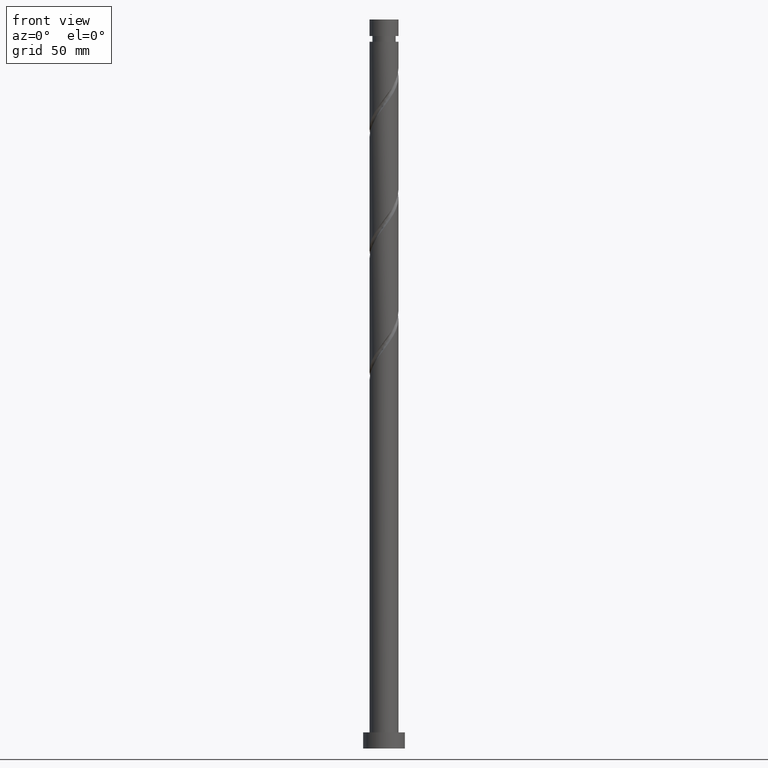
[diagram: clean part render]
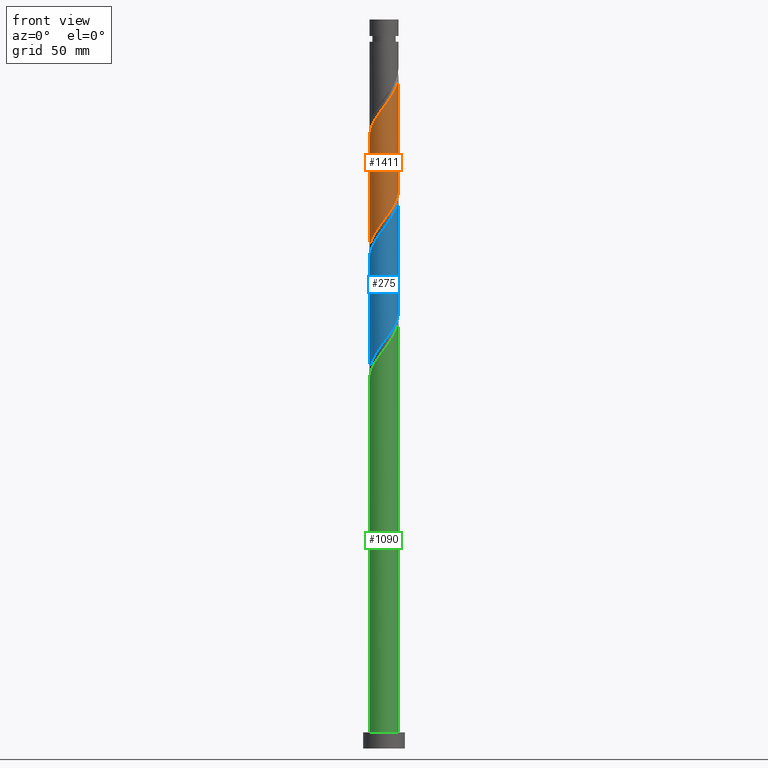
[diagram: same view with three faces highlighted in distinct colors, each labeled with its STEP entity id]
A machine part, front view with three faces highlighted in distinct colors.
Their STEP definitions:

[orange] entity #1411 — the highlighted cylindrical surface (edge-blend (fillet) strip) has radius 6.25 mm, axis along (-0, -0, -1).
#3 = LINE ( 'NONE', #122, #411 ) ;
#12 = CARTESIAN_POINT ( 'NONE',  ( 2.575492001364306116, -5.694676544888975123, 281.0050190924108620 ) ) ;
#23 = CARTESIAN_POINT ( 'NONE',  ( 5.564173480133612237, -2.846484407647080328, 286.6300190924108051 ) ) ;
#31 = CARTESIAN_POINT ( 'NONE',  ( -0.8543914186961960588, -6.231245559048660176, 276.3175190924106914 ) ) ;
#41 = CARTESIAN_POINT ( 'NONE',  ( 3.217127949457152969, -5.404488289406035761, 281.9425190924107483 ) ) ;
#58 = CARTESIAN_POINT ( 'NONE',  ( -6.250000000000001776, 1.634372200607126846E-15, 215.1795361703167657 ) ) ;
#91 = CARTESIAN_POINT ( 'NONE',  ( -6.250000000000001776, 1.634372200607126649E-15, 215.1795361703167657 ) ) ;
#122 = CARTESIAN_POINT ( 'NONE',  ( -6.250000000000000000, 0.000000000000000000, 315.0000000000000000 ) ) ;
#171 = AXIS2_PLACEMENT_3D ( 'NONE', #869, #1342, #1463 ) ;
#185 = CARTESIAN_POINT ( 'NONE',  ( -5.404488289406035761, -3.217127949457152969, 268.8175190924106914 ) ) ;
#219 = CARTESIAN_POINT ( 'NONE',  ( -4.791265665122413253, -4.013262180099761878, 221.0050190924107483 ) ) ;
#228 = CARTESIAN_POINT ( 'NONE',  ( -6.250000000000001776, -0.07520560728993004596, 215.2798988585418840 ) ) ;
#235 = CARTESIAN_POINT ( 'NONE',  ( -4.339079616700646014, -4.553108168431563740, 221.9425190924107767 ) ) ;
#257 = CYLINDRICAL_SURFACE ( 'NONE', #171, 6.250000000000000000 ) ;
#288 = VERTEX_POINT ( 'NONE', #1009 ) ;
#311 = EDGE_CURVE ( 'NONE', #288, #1888, #3, .T. ) ;
#317 = CARTESIAN_POINT ( 'NONE',  ( -6.250000000000011546, -0.6281486345369915458, 265.1687730934682463 ) ) ;
#336 = CARTESIAN_POINT ( 'NONE',  ( 6.250000000000001776, -2.291106235554282619E-15, 241.4295361703167657 ) ) ;
#357 = CARTESIAN_POINT ( 'NONE',  ( 2.846484407647072334, -5.564173480133604244, 232.2550190924107483 ) ) ;
#373 = CARTESIAN_POINT ( 'NONE',  ( 5.984864800371902049, -1.933856053271458597, 238.8175190924107198 ) ) ;
#411 = VECTOR ( 'NONE', #739, 1000.000000000000000 ) ;
#455 = CARTESIAN_POINT ( 'NONE',  ( -2.219552623526193091, -5.884895246723031548, 274.4425190924107483 ) ) ;
#466 = CARTESIAN_POINT ( 'NONE',  ( 6.250000000000012434, -0.07520560728996757149, 290.4801393262795273 ) ) ;
#477 = VERTEX_POINT ( 'NONE', #336 ) ;
#486 = EDGE_CURVE ( 'NONE', #288, #1802, #1617, .T. ) ;
#514 = CARTESIAN_POINT ( 'NONE',  ( 1.536972021111190356, -6.058070402885839201, 230.3800190924107767 ) ) ;
#523 = CARTESIAN_POINT ( 'NONE',  ( -6.231245559048653071, -0.8543914186961926172, 216.3175190924107767 ) ) ;
#615 = CARTESIAN_POINT ( 'NONE',  ( 5.884895246723031548, -2.219552623526193091, 287.5675190924107483 ) ) ;
#626 = CARTESIAN_POINT ( 'NONE',  ( -0.1503894396005498180, -6.248190379338388389, 277.2550190924108051 ) ) ;
#636 = CARTESIAN_POINT ( 'NONE',  ( 6.058070402885848971, -1.536972021111195685, 288.5050190924109188 ) ) ;
#644 = CARTESIAN_POINT ( 'NONE',  ( 5.243451713544189374, -3.473416191767966232, 285.6925190924107483 ) ) ;
#662 = CARTESIAN_POINT ( 'NONE',  ( -2.575492001364303896, -5.694676544888963576, 224.7550190924107483 ) ) ;
#669 = CARTESIAN_POINT ( 'NONE',  ( -0.5536125394950975886, -6.265135199628102392, 227.5675190924107198 ) ) ;
#685 = CARTESIAN_POINT ( 'NONE',  ( 3.473416191767959571, -5.243451713544184045, 233.1925190924106914 ) ) ;
#739 = DIRECTION ( 'NONE',  ( -0.000000000000000000, -0.000000000000000000, -1.000000000000000000 ) ) ;
#749 = ORIENTED_EDGE ( 'NONE', *, *, #1718, .F. ) ;
#750 = CARTESIAN_POINT ( 'NONE',  ( -5.694676544888975123, -2.575492001364306116, 267.8800190924108051 ) ) ;
#781 = CARTESIAN_POINT ( 'NONE',  ( -4.553108168431573510, -4.339079616700646902, 270.6925190924106346 ) ) ;
#798 = CARTESIAN_POINT ( 'NONE',  ( 0.1503894396005474032, -6.248190379338377731, 228.5050190924107767 ) ) ;
#807 = CARTESIAN_POINT ( 'NONE',  ( 4.978798228918796198, -3.778103783078897493, 236.0050190924107198 ) ) ;
#815 = CARTESIAN_POINT ( 'NONE',  ( -5.564173480133604244, -2.846484407647073223, 219.1300190924107483 ) ) ;
#816 =( BOUNDED_CURVE ( )  B_SPLINE_CURVE ( 2, ( #1429, #1847, #1100, #373, #1578, #959, #807, #1560, #1568, #685, #357, #1855, #514, #987, #798, #669, #1404, #1729, #662, #1126, #1258, #235, #219, #967, #815, #826, #1413, #523, #1722, #228, #58 ),
 .UNSPECIFIED., .F., .T. ) 
 B_SPLINE_CURVE_WITH_KNOTS ( ( 3, 2, 2, 2, 2, 2, 2, 2, 2, 2, 2, 2, 2, 2, 2, 3 ),
 ( 0.5545303401299221946, 0.5625000000000000000, 0.5714285714285713969, 0.5803571428571429047, 0.5892857142857143016, 0.5982142857142856984, 0.6071428571428570953, 0.6160714285714286031, 0.6250000000000000000, 0.6339285714285713969, 0.6428571428571429047, 0.6517857142857143016, 0.6607142857142856984, 0.6696428571428570953, 0.6785714285714286031, 0.6795303401299221946 ),
 .UNSPECIFIED. ) 
 CURVE ( )  GEOMETRIC_REPRESENTATION_ITEM ( )  RATIONAL_B_SPLINE_CURVE ( ( 0.9079949616361964182, 0.9039886423360596890, 0.9090909090909264911, 0.9033747362666013636, 0.9090909090909264911, 0.9033747362666013636, 0.9090909090909264911, 0.9033747362666013636, 0.9090909090909264911, 0.9033747362666013636, 0.9090909090909264911, 0.9033747362666013636, 0.9090909090909264911, 0.9033747362666013636, 0.9090909090909264911, 0.9033747362666013636, 0.9090909090909264911, 0.9033747362666013636, 0.9090909090909264911, 0.9033747362666013636, 0.9090909090909264911, 0.9033747362666013636, 0.9090909090909264911, 0.9033747362666013636, 0.9090909090909264911, 0.9033747362666013636, 0.9090909090909264911, 0.9033747362666013636, 0.9090909090909264911, 0.9084770030214681658, 0.9079949616361964182 ) ) 
 REPRESENTATION_ITEM ( '' )  );
#826 = CARTESIAN_POINT ( 'NONE',  ( -5.884895246723026219, -2.219552623526188206, 218.1925190924107198 ) ) ;
#869 = CARTESIAN_POINT ( 'NONE',  ( 0.000000000000000000, 0.000000000000000000, 315.0000000000000000 ) ) ;
#906 = CARTESIAN_POINT ( 'NONE',  ( 3.778103783078901490, -4.978798228918804192, 282.8800190924107483 ) ) ;
#926 = CARTESIAN_POINT ( 'NONE',  ( -6.125000000000010658, -1.243734296383277815, 266.0050190924108051 ) ) ;
#934 = CARTESIAN_POINT ( 'NONE',  ( -3.473416191767964900, -5.243451713544189374, 272.5675190924107483 ) ) ;
#959 = CARTESIAN_POINT ( 'NONE',  ( 5.404488289406027768, -3.217127949457150748, 236.9425190924108051 ) ) ;
#967 = CARTESIAN_POINT ( 'NONE',  ( -5.243451713544183157, -3.473416191767959571, 220.0675190924107767 ) ) ;
#987 = CARTESIAN_POINT ( 'NONE',  ( 0.8543914186961921731, -6.231245559048651295, 229.4425190924107483 ) ) ;
#996 = ORIENTED_EDGE ( 'NONE', *, *, #311, .T. ) ;
#1009 = CARTESIAN_POINT ( 'NONE',  ( -6.250000000000010658, 9.851010524207275462E-16, 264.3305020145047024 ) ) ;
#1049 = CARTESIAN_POINT ( 'NONE',  ( 4.339079616700646902, -4.553108168431573510, 283.8175190924105777 ) ) ;
#1050 = EDGE_LOOP ( 'NONE', ( #749, #1196, #996, #1513 ) ) ;
#1100 = CARTESIAN_POINT ( 'NONE',  ( 6.125000000000000888, -1.243734296383278037, 239.7550190924107483 ) ) ;
#1107 = VECTOR ( 'NONE', #1712, 1000.000000000000000 ) ;
#1118 = LINE ( 'NONE', #1135, #1107 ) ;
#1126 = CARTESIAN_POINT ( 'NONE',  ( -3.217127949457150748, -5.404488289406027768, 223.8175190924107483 ) ) ;
#1135 = CARTESIAN_POINT ( 'NONE',  ( 6.250000000000000000, 7.654042494670957606E-16, 315.0000000000000000 ) ) ;
#1196 = ORIENTED_EDGE ( 'NONE', *, *, #486, .F. ) ;
#1258 = CARTESIAN_POINT ( 'NONE',  ( -3.778103783078897049, -4.978798228918796198, 222.8800190924108051 ) ) ;
#1342 = DIRECTION ( 'NONE',  ( -0.000000000000000000, -0.000000000000000000, -1.000000000000000000 ) ) ;
#1348 = CARTESIAN_POINT ( 'NONE',  ( 1.243734296383277371, -6.125000000000010658, 279.1300190924108051 ) ) ;
#1359 = CARTESIAN_POINT ( 'NONE',  ( -5.984864800371907378, -1.933856053271458375, 266.9425190924107483 ) ) ;
#1378 = CARTESIAN_POINT ( 'NONE',  ( -4.013262180099769871, -4.791265665122421247, 271.6300190924108051 ) ) ;
#1387 = CARTESIAN_POINT ( 'NONE',  ( -4.978798228918804192, -3.778103783078902378, 269.7550190924108620 ) ) ;
#1404 = CARTESIAN_POINT ( 'NONE',  ( -1.243734296383278037, -6.125000000000000888, 226.6300190924107767 ) ) ;
#1411 = ADVANCED_FACE ( 'NONE', ( #1473 ), #257, .T. ) ;
#1413 = CARTESIAN_POINT ( 'NONE',  ( -6.058070402885839201, -1.536972021111190578, 217.2550190924107483 ) ) ;
#1429 = CARTESIAN_POINT ( 'NONE',  ( 6.250000000000001776, -2.291106235554282619E-15, 241.4295361703167657 ) ) ;
#1463 = DIRECTION ( 'NONE',  ( -1.000000000000000000, 0.000000000000000000, 0.000000000000000000 ) ) ;
#1473 = FACE_OUTER_BOUND ( 'NONE', #1050, .T. ) ;
#1493 = CARTESIAN_POINT ( 'NONE',  ( 0.5536125394950959233, -6.265135199628107721, 278.1925190924106914 ) ) ;
#1513 = ORIENTED_EDGE ( 'NONE', *, *, #1805, .F. ) ;
#1514 = CARTESIAN_POINT ( 'NONE',  ( -2.846484407647079884, -5.564173480133612237, 273.5050190924108620 ) ) ;
#1533 = CARTESIAN_POINT ( 'NONE',  ( 4.791265665122420359, -4.013262180099769871, 284.7550190924107483 ) ) ;
#1551 = CARTESIAN_POINT ( 'NONE',  ( 6.250000000000010658, -1.813481482865430117E-15, 290.5805020145046456 ) ) ;
#1560 = CARTESIAN_POINT ( 'NONE',  ( 4.553108168431563740, -4.339079616700646014, 235.0675190924107198 ) ) ;
#1568 = CARTESIAN_POINT ( 'NONE',  ( 4.013262180099761878, -4.791265665122413253, 234.1300190924108051 ) ) ;
#1578 = CARTESIAN_POINT ( 'NONE',  ( 5.694676544888963576, -2.575492001364304784, 237.8800190924107767 ) ) ;
#1617 =( BOUNDED_CURVE ( )  B_SPLINE_CURVE ( 2, ( #1670, #317, #926, #1359, #750, #185, #1387, #781, #1378, #934, #1514, #455, #1801, #31, #626, #1493, #1348, #1659, #12, #41, #906, #1049, #1533, #644, #23, #615, #636, #1821, #1647, #466, #1811 ),
 .UNSPECIFIED., .F., .T. ) 
 B_SPLINE_CURVE_WITH_KNOTS ( ( 3, 2, 2, 2, 2, 2, 2, 2, 2, 2, 2, 2, 2, 2, 2, 3 ),
 ( 0.5545303401299218615, 0.5625000000000000000, 0.5714285714285713969, 0.5803571428571427937, 0.5892857142857143016, 0.5982142857142856984, 0.6071428571428572063, 0.6160714285714286031, 0.6250000000000000000, 0.6339285714285713969, 0.6428571428571427937, 0.6517857142857143016, 0.6607142857142856984, 0.6696428571428572063, 0.6785714285714286031, 0.6795303401299217505 ),
 .UNSPECIFIED. ) 
 CURVE ( )  GEOMETRIC_REPRESENTATION_ITEM ( )  RATIONAL_B_SPLINE_CURVE ( ( 0.9079949616362025244, 0.9039886423360654621, 0.9090909090909321533, 0.9033747362666073588, 0.9090909090909321533, 0.9033747362666073588, 0.9090909090909321533, 0.9033747362666073588, 0.9090909090909321533, 0.9033747362666073588, 0.9090909090909321533, 0.9033747362666073588, 0.9090909090909321533, 0.9033747362666073588, 0.9090909090909321533, 0.9033747362666073588, 0.9090909090909321533, 0.9033747362666073588, 0.9090909090909321533, 0.9033747362666073588, 0.9090909090909321533, 0.9033747362666073588, 0.9090909090909321533, 0.9033747362666073588, 0.9090909090909321533, 0.9033747362666073588, 0.9090909090909321533, 0.9033747362666073588, 0.9090909090909321533, 0.9084770030214741610, 0.9079949616362026354 ) ) 
 REPRESENTATION_ITEM ( '' )  );
#1647 = CARTESIAN_POINT ( 'NONE',  ( 6.248190379338388389, -0.1503894396005505119, 290.3800190924107483 ) ) ;
#1659 = CARTESIAN_POINT ( 'NONE',  ( 1.933856053271457931, -5.984864800371907378, 280.0675190924106914 ) ) ;
#1670 = CARTESIAN_POINT ( 'NONE',  ( -6.250000000000009770, 9.851010524207275462E-16, 264.3305020145047024 ) ) ;
#1712 = DIRECTION ( 'NONE',  ( -0.000000000000000000, -0.000000000000000000, -1.000000000000000000 ) ) ;
#1718 = EDGE_CURVE ( 'NONE', #1802, #477, #1118, .T. ) ;
#1722 = CARTESIAN_POINT ( 'NONE',  ( -6.248190379338377731, -0.1503894396005476530, 215.3800190924107198 ) ) ;
#1729 = CARTESIAN_POINT ( 'NONE',  ( -1.933856053271458153, -5.984864800371902049, 225.6925190924107483 ) ) ;
#1801 = CARTESIAN_POINT ( 'NONE',  ( -1.536972021111195241, -6.058070402885848971, 275.3800190924107483 ) ) ;
#1802 = VERTEX_POINT ( 'NONE', #1551 ) ;
#1805 = EDGE_CURVE ( 'NONE', #477, #1888, #816, .T. ) ;
#1811 = CARTESIAN_POINT ( 'NONE',  ( 6.250000000000010658, -1.813481482865430117E-15, 290.5805020145046456 ) ) ;
#1821 = CARTESIAN_POINT ( 'NONE',  ( 6.231245559048660176, -0.8543914186961966140, 289.4425190924106914 ) ) ;
#1847 = CARTESIAN_POINT ( 'NONE',  ( 6.250000000000000000, -0.6281486345370189683, 240.5912650913531650 ) ) ;
#1855 = CARTESIAN_POINT ( 'NONE',  ( 2.219552623526188206, -5.884895246723026219, 231.3175190924108051 ) ) ;
#1888 = VERTEX_POINT ( 'NONE', #91 ) ;

[blue] entity #275 — the highlighted cylindrical surface (edge-blend (fillet) strip) has radius 6.25 mm, axis along (-0, -0, -1).
#1 = CARTESIAN_POINT ( 'NONE',  ( 6.250000000000011546, -0.07520560728991529387, 237.9801393262796694 ) ) ;
#14 = CARTESIAN_POINT ( 'NONE',  ( -6.058070402885839201, -1.536972021111190578, 164.7550190924107198 ) ) ;
#34 = CARTESIAN_POINT ( 'NONE',  ( 1.536972021111190356, -6.058070402885839201, 177.8800190924107767 ) ) ;
#50 = CARTESIAN_POINT ( 'NONE',  ( 4.013262180099761878, -4.791265665122413253, 181.6300190924107483 ) ) ;
#57 = LINE ( 'NONE', #347, #1871 ) ;
#67 = CARTESIAN_POINT ( 'NONE',  ( -6.250000000000001776, 1.634372200607126846E-15, 162.6795361703167941 ) ) ;
#96 = CARTESIAN_POINT ( 'NONE',  ( -6.250000000000010658, 4.477732056457852931E-17, 211.8305020145046740 ) ) ;
#98 = FACE_OUTER_BOUND ( 'NONE', #862, .T. ) ;
#102 =( BOUNDED_CURVE ( )  B_SPLINE_CURVE ( 2, ( #96, #1133, #120, #1727, #985, #713, #875, #1313, #1292, #1142, #994, #1591, #249, #1902, #850, #1446, #1468, #569, #109, #557, #130, #702, #1303, #1165, #724, #1915, #579, #1338, #737, #1, #589 ),
 .UNSPECIFIED., .F., .T. ) 
 B_SPLINE_CURVE_WITH_KNOTS ( ( 3, 2, 2, 2, 2, 2, 2, 2, 2, 2, 2, 2, 2, 2, 2, 3 ),
 ( 0.3045303401299221391, 0.3125000000000000000, 0.3214285714285713969, 0.3303571428571429047, 0.3392857142857143016, 0.3482142857142856984, 0.3571428571428570953, 0.3660714285714286031, 0.3750000000000000000, 0.3839285714285713969, 0.3928571428571429047, 0.4017857142857143016, 0.4107142857142856984, 0.4196428571428570953, 0.4285714285714286031, 0.4295303401299224166 ),
 .UNSPECIFIED. ) 
 CURVE ( )  GEOMETRIC_REPRESENTATION_ITEM ( )  RATIONAL_B_SPLINE_CURVE ( ( 0.9079949616362021914, 0.9039886423360656842, 0.9090909090909321533, 0.9033747362666073588, 0.9090909090909321533, 0.9033747362666073588, 0.9090909090909321533, 0.9033747362666073588, 0.9090909090909321533, 0.9033747362666073588, 0.9090909090909321533, 0.9033747362666073588, 0.9090909090909321533, 0.9033747362666073588, 0.9090909090909321533, 0.9033747362666073588, 0.9090909090909321533, 0.9033747362666073588, 0.9090909090909321533, 0.9033747362666073588, 0.9090909090909321533, 0.9033747362666073588, 0.9090909090909321533, 0.9033747362666073588, 0.9090909090909321533, 0.9033747362666073588, 0.9090909090909321533, 0.9033747362666073588, 0.9090909090909321533, 0.9084770030214737169, 0.9079949616362019693 ) ) 
 REPRESENTATION_ITEM ( '' )  );
#109 = CARTESIAN_POINT ( 'NONE',  ( 2.575492001364306116, -5.694676544888975123, 228.5050190924108335 ) ) ;
#120 = CARTESIAN_POINT ( 'NONE',  ( -6.125000000000010658, -1.243734296383277815, 213.5050190924108335 ) ) ;
#130 = CARTESIAN_POINT ( 'NONE',  ( 3.778103783078901490, -4.978798228918804192, 230.3800190924108335 ) ) ;
#145 = DIRECTION ( 'NONE',  ( -1.000000000000000000, 0.000000000000000000, 0.000000000000000000 ) ) ;
#186 = CARTESIAN_POINT ( 'NONE',  ( 2.846484407647072334, -5.564173480133604244, 179.7550190924107483 ) ) ;
#194 = CARTESIAN_POINT ( 'NONE',  ( -3.217127949457150748, -5.404488289406027768, 171.3175190924107483 ) ) ;
#227 = CARTESIAN_POINT ( 'NONE',  ( 6.250000000000001776, -2.291106235554282619E-15, 188.9295361703167941 ) ) ;
#249 = CARTESIAN_POINT ( 'NONE',  ( -1.536972021111195241, -6.058070402885848971, 222.8800190924108051 ) ) ;
#275 = ADVANCED_FACE ( 'NONE', ( #98 ), #1414, .T. ) ;
#308 = VERTEX_POINT ( 'NONE', #1145 ) ;
#329 = CARTESIAN_POINT ( 'NONE',  ( 6.250000000000001776, -2.291106235554282619E-15, 188.9295361703167941 ) ) ;
#338 = CARTESIAN_POINT ( 'NONE',  ( 4.553108168431563740, -4.339079616700646014, 182.5675190924107483 ) ) ;
#347 = CARTESIAN_POINT ( 'NONE',  ( 6.250000000000000000, 7.654042494670957606E-16, 315.0000000000000000 ) ) ;
#470 = ORIENTED_EDGE ( 'NONE', *, *, #1667, .F. ) ;
#491 = CARTESIAN_POINT ( 'NONE',  ( 5.984864800371902049, -1.933856053271458597, 186.3175190924107767 ) ) ;
#522 = DIRECTION ( 'NONE',  ( -0.000000000000000000, -0.000000000000000000, -1.000000000000000000 ) ) ;
#557 = CARTESIAN_POINT ( 'NONE',  ( 3.217127949457152969, -5.404488289406035761, 229.4425190924106914 ) ) ;
#559 = CARTESIAN_POINT ( 'NONE',  ( 0.000000000000000000, 0.000000000000000000, 315.0000000000000000 ) ) ;
#569 = CARTESIAN_POINT ( 'NONE',  ( 1.933856053271457931, -5.984864800371907378, 227.5675190924107198 ) ) ;
#576 = VERTEX_POINT ( 'NONE', #227 ) ;
#579 = CARTESIAN_POINT ( 'NONE',  ( 6.058070402885848971, -1.536972021111195685, 236.0050190924108051 ) ) ;
#589 = CARTESIAN_POINT ( 'NONE',  ( 6.250000000000011546, -8.955464112915705862E-16, 238.0805020145046740 ) ) ;
#601 = EDGE_CURVE ( 'NONE', #1800, #576, #57, .T. ) ;
#606 = CARTESIAN_POINT ( 'NONE',  ( -6.248190379338377731, -0.1503894396005476530, 162.8800190924107483 ) ) ;
#617 = CARTESIAN_POINT ( 'NONE',  ( -6.231245559048653071, -0.8543914186961926172, 163.8175190924107767 ) ) ;
#645 = CARTESIAN_POINT ( 'NONE',  ( -3.778103783078897049, -4.978798228918796198, 170.3800190924107198 ) ) ;
#702 = CARTESIAN_POINT ( 'NONE',  ( 4.339079616700646902, -4.553108168431573510, 231.3175190924107198 ) ) ;
#713 = CARTESIAN_POINT ( 'NONE',  ( -5.404488289406035761, -3.217127949457152969, 216.3175190924107767 ) ) ;
#724 = CARTESIAN_POINT ( 'NONE',  ( 5.564173480133612237, -2.846484407647080328, 234.1300190924108051 ) ) ;
#737 = CARTESIAN_POINT ( 'NONE',  ( 6.248190379338388389, -0.1503894396005505119, 237.8800190924107483 ) ) ;
#763 = CARTESIAN_POINT ( 'NONE',  ( -1.243734296383278037, -6.125000000000000888, 174.1300190924108051 ) ) ;
#782 = CARTESIAN_POINT ( 'NONE',  ( -0.5536125394950975886, -6.265135199628102392, 175.0675190924107767 ) ) ;
#829 =( BOUNDED_CURVE ( )  B_SPLINE_CURVE ( 2, ( #329, #1526, #1504, #491, #1829, #1812, #1081, #338, #50, #1370, #186, #1544, #34, #1389, #1361, #782, #763, #935, #1535, #194, #645, #1218, #1243, #1350, #1091, #942, #14, #617, #606, #1206, #67 ),
 .UNSPECIFIED., .F., .T. ) 
 B_SPLINE_CURVE_WITH_KNOTS ( ( 3, 2, 2, 2, 2, 2, 2, 2, 2, 2, 2, 2, 2, 2, 2, 3 ),
 ( 0.8045303401299221946, 0.8125000000000000000, 0.8214285714285713969, 0.8303571428571429047, 0.8392857142857143016, 0.8482142857142856984, 0.8571428571428570953, 0.8660714285714286031, 0.8750000000000000000, 0.8839285714285713969, 0.8928571428571429047, 0.9017857142857143016, 0.9107142857142856984, 0.9196428571428570953, 0.9285714285714286031, 0.9295303401299221946 ),
 .UNSPECIFIED. ) 
 CURVE ( )  GEOMETRIC_REPRESENTATION_ITEM ( )  RATIONAL_B_SPLINE_CURVE ( ( 0.9079949616361964182, 0.9039886423360596890, 0.9090909090909264911, 0.9033747362666013636, 0.9090909090909264911, 0.9033747362666013636, 0.9090909090909264911, 0.9033747362666013636, 0.9090909090909264911, 0.9033747362666013636, 0.9090909090909264911, 0.9033747362666013636, 0.9090909090909264911, 0.9033747362666013636, 0.9090909090909264911, 0.9033747362666013636, 0.9090909090909264911, 0.9033747362666013636, 0.9090909090909264911, 0.9033747362666013636, 0.9090909090909264911, 0.9033747362666013636, 0.9090909090909264911, 0.9033747362666013636, 0.9090909090909264911, 0.9033747362666013636, 0.9090909090909264911, 0.9033747362666013636, 0.9090909090909264911, 0.9084770030214681658, 0.9079949616361964182 ) ) 
 REPRESENTATION_ITEM ( '' )  );
#850 = CARTESIAN_POINT ( 'NONE',  ( -0.1503894396005498180, -6.248190379338388389, 224.7550190924107767 ) ) ;
#862 = EDGE_LOOP ( 'NONE', ( #1593, #1660, #897, #470 ) ) ;
#875 = CARTESIAN_POINT ( 'NONE',  ( -4.978798228918804192, -3.778103783078902378, 217.2550190924107767 ) ) ;
#897 = ORIENTED_EDGE ( 'NONE', *, *, #943, .T. ) ;
#935 = CARTESIAN_POINT ( 'NONE',  ( -1.933856053271458153, -5.984864800371902049, 173.1925190924107767 ) ) ;
#942 = CARTESIAN_POINT ( 'NONE',  ( -5.884895246723026219, -2.219552623526188206, 165.6925190924107483 ) ) ;
#943 = EDGE_CURVE ( 'NONE', #1205, #308, #1017, .T. ) ;
#985 = CARTESIAN_POINT ( 'NONE',  ( -5.694676544888975123, -2.575492001364306116, 215.3800190924107483 ) ) ;
#994 = CARTESIAN_POINT ( 'NONE',  ( -2.846484407647079884, -5.564173480133612237, 221.0050190924108620 ) ) ;
#1017 = LINE ( 'NONE', #1479, #1129 ) ;
#1063 = EDGE_CURVE ( 'NONE', #1205, #1800, #102, .T. ) ;
#1081 = CARTESIAN_POINT ( 'NONE',  ( 4.978798228918796198, -3.778103783078897493, 183.5050190924107483 ) ) ;
#1091 = CARTESIAN_POINT ( 'NONE',  ( -5.564173480133604244, -2.846484407647073223, 166.6300190924107767 ) ) ;
#1129 = VECTOR ( 'NONE', #1435, 1000.000000000000000 ) ;
#1133 = CARTESIAN_POINT ( 'NONE',  ( -6.250000000000008882, -0.6281486345370130842, 212.6687730934682747 ) ) ;
#1142 = CARTESIAN_POINT ( 'NONE',  ( -3.473416191767964900, -5.243451713544189374, 220.0675190924106914 ) ) ;
#1145 = CARTESIAN_POINT ( 'NONE',  ( -6.250000000000001776, 1.634372200607126649E-15, 162.6795361703167941 ) ) ;
#1165 = CARTESIAN_POINT ( 'NONE',  ( 5.243451713544189374, -3.473416191767966232, 233.1925190924107198 ) ) ;
#1205 = VERTEX_POINT ( 'NONE', #1310 ) ;
#1206 = CARTESIAN_POINT ( 'NONE',  ( -6.250000000000001776, -0.07520560728993004596, 162.7798988585419124 ) ) ;
#1218 = CARTESIAN_POINT ( 'NONE',  ( -4.339079616700646014, -4.553108168431563740, 169.4425190924107767 ) ) ;
#1243 = CARTESIAN_POINT ( 'NONE',  ( -4.791265665122413253, -4.013262180099761878, 168.5050190924107767 ) ) ;
#1292 = CARTESIAN_POINT ( 'NONE',  ( -4.013262180099769871, -4.791265665122421247, 219.1300190924107767 ) ) ;
#1303 = CARTESIAN_POINT ( 'NONE',  ( 4.791265665122420359, -4.013262180099769871, 232.2550190924108051 ) ) ;
#1310 = CARTESIAN_POINT ( 'NONE',  ( -6.250000000000010658, 4.477732056457852931E-17, 211.8305020145047024 ) ) ;
#1313 = CARTESIAN_POINT ( 'NONE',  ( -4.553108168431573510, -4.339079616700646902, 218.1925190924106914 ) ) ;
#1338 = CARTESIAN_POINT ( 'NONE',  ( 6.231245559048660176, -0.8543914186961966140, 236.9425190924107767 ) ) ;
#1350 = CARTESIAN_POINT ( 'NONE',  ( -5.243451713544183157, -3.473416191767959571, 167.5675190924107483 ) ) ;
#1361 = CARTESIAN_POINT ( 'NONE',  ( 0.1503894396005474032, -6.248190379338377731, 176.0050190924107767 ) ) ;
#1370 = CARTESIAN_POINT ( 'NONE',  ( 3.473416191767959571, -5.243451713544184045, 180.6925190924107767 ) ) ;
#1389 = CARTESIAN_POINT ( 'NONE',  ( 0.8543914186961921731, -6.231245559048651295, 176.9425190924107767 ) ) ;
#1414 = CYLINDRICAL_SURFACE ( 'NONE', #1721, 6.250000000000000000 ) ;
#1435 = DIRECTION ( 'NONE',  ( -0.000000000000000000, -0.000000000000000000, -1.000000000000000000 ) ) ;
#1446 = CARTESIAN_POINT ( 'NONE',  ( 0.5536125394950959233, -6.265135199628107721, 225.6925190924106914 ) ) ;
#1468 = CARTESIAN_POINT ( 'NONE',  ( 1.243734296383277371, -6.125000000000010658, 226.6300190924107483 ) ) ;
#1479 = CARTESIAN_POINT ( 'NONE',  ( -6.250000000000000000, 0.000000000000000000, 315.0000000000000000 ) ) ;
#1504 = CARTESIAN_POINT ( 'NONE',  ( 6.125000000000000888, -1.243734296383278037, 187.2550190924107767 ) ) ;
#1526 = CARTESIAN_POINT ( 'NONE',  ( 6.250000000000000000, -0.6281486345370189683, 188.0912650913531934 ) ) ;
#1535 = CARTESIAN_POINT ( 'NONE',  ( -2.575492001364303896, -5.694676544888963576, 172.2550190924107767 ) ) ;
#1544 = CARTESIAN_POINT ( 'NONE',  ( 2.219552623526188206, -5.884895246723026219, 178.8175190924107767 ) ) ;
#1591 = CARTESIAN_POINT ( 'NONE',  ( -2.219552623526193091, -5.884895246723031548, 221.9425190924107198 ) ) ;
#1593 = ORIENTED_EDGE ( 'NONE', *, *, #601, .F. ) ;
#1660 = ORIENTED_EDGE ( 'NONE', *, *, #1063, .F. ) ;
#1667 = EDGE_CURVE ( 'NONE', #576, #308, #829, .T. ) ;
#1698 = CARTESIAN_POINT ( 'NONE',  ( 6.250000000000011546, -8.955464112915705862E-16, 238.0805020145047024 ) ) ;
#1721 = AXIS2_PLACEMENT_3D ( 'NONE', #559, #1746, #145 ) ;
#1727 = CARTESIAN_POINT ( 'NONE',  ( -5.984864800371907378, -1.933856053271458375, 214.4425190924107198 ) ) ;
#1746 = DIRECTION ( 'NONE',  ( -0.000000000000000000, -0.000000000000000000, -1.000000000000000000 ) ) ;
#1800 = VERTEX_POINT ( 'NONE', #1698 ) ;
#1812 = CARTESIAN_POINT ( 'NONE',  ( 5.404488289406027768, -3.217127949457150748, 184.4425190924107767 ) ) ;
#1829 = CARTESIAN_POINT ( 'NONE',  ( 5.694676544888963576, -2.575492001364304784, 185.3800190924107198 ) ) ;
#1871 = VECTOR ( 'NONE', #522, 1000.000000000000000 ) ;
#1902 = CARTESIAN_POINT ( 'NONE',  ( -0.8543914186961960588, -6.231245559048660176, 223.8175190924107483 ) ) ;
#1915 = CARTESIAN_POINT ( 'NONE',  ( 5.884895246723031548, -2.219552623526193091, 235.0675190924106914 ) ) ;

[green] entity #1090 — the highlighted cylindrical surface (edge-blend (fillet) strip) has radius 6.25 mm, axis along (-0, -0, -1).
#36 = CARTESIAN_POINT ( 'NONE',  ( 4.791265665122420359, -4.013262180099769871, 179.7550190924108051 ) ) ;
#43 = CARTESIAN_POINT ( 'NONE',  ( -2.219552623526193091, -5.884895246723031548, 169.4425190924107198 ) ) ;
#66 = DIRECTION ( 'NONE',  ( -0.000000000000000000, -0.000000000000000000, -1.000000000000000000 ) ) ;
#161 = ORIENTED_EDGE ( 'NONE', *, *, #772, .F. ) ;
#187 = CARTESIAN_POINT ( 'NONE',  ( -5.984864800371907378, -1.933856053271458375, 161.9425190924107198 ) ) ;
#195 = EDGE_CURVE ( 'NONE', #1192, #878, #1761, .T. ) ;
#196 = CARTESIAN_POINT ( 'NONE',  ( 3.778103783078901490, -4.978798228918804192, 177.8800190924107767 ) ) ;
#205 = CARTESIAN_POINT ( 'NONE',  ( 4.339079616700646902, -4.553108168431573510, 178.8175190924107198 ) ) ;
#255 = CIRCLE ( 'NONE', #537, 6.250000000000000000 ) ;
#265 = CARTESIAN_POINT ( 'NONE',  ( 5.884895246723031548, -2.219552623526193091, 182.5675190924106914 ) ) ;
#366 = CARTESIAN_POINT ( 'NONE',  ( 0.5536125394950959233, -6.265135199628107721, 173.1925190924107767 ) ) ;
#389 = EDGE_CURVE ( 'NONE', #984, #651, #255, .T. ) ;
#492 = CARTESIAN_POINT ( 'NONE',  ( -4.553108168431573510, -4.339079616700646902, 165.6925190924106630 ) ) ;
#504 = ORIENTED_EDGE ( 'NONE', *, *, #389, .T. ) ;
#507 = CARTESIAN_POINT ( 'NONE',  ( -6.125000000000010658, -1.243734296383277815, 161.0050190924108335 ) ) ;
#537 = AXIS2_PLACEMENT_3D ( 'NONE', #1019, #1615, #695 ) ;
#543 = CYLINDRICAL_SURFACE ( 'NONE', #1567, 6.250000000000000000 ) ;
#548 = CARTESIAN_POINT ( 'NONE',  ( 6.248190379338388389, -0.1503894396005505119, 185.3800190924107767 ) ) ;
#651 = VERTEX_POINT ( 'NONE', #1266 ) ;
#695 = DIRECTION ( 'NONE',  ( 1.000000000000000000, 0.000000000000000000, 0.000000000000000000 ) ) ;
#772 = EDGE_CURVE ( 'NONE', #878, #651, #1705, .T. ) ;
#775 = CARTESIAN_POINT ( 'NONE',  ( 1.933856053271457931, -5.984864800371907378, 175.0675190924106914 ) ) ;
#799 = CARTESIAN_POINT ( 'NONE',  ( 5.243451713544189374, -3.473416191767966232, 180.6925190924106914 ) ) ;
#878 = VERTEX_POINT ( 'NONE', #1756 ) ;
#887 = CARTESIAN_POINT ( 'NONE',  ( 6.231245559048660176, -0.8543914186961966140, 184.4425190924107483 ) ) ;
#894 = ORIENTED_EDGE ( 'NONE', *, *, #195, .F. ) ;
#928 = CARTESIAN_POINT ( 'NONE',  ( -2.846484407647079884, -5.564173480133612237, 168.5050190924108051 ) ) ;
#936 = CARTESIAN_POINT ( 'NONE',  ( -0.1503894396005498180, -6.248190379338388389, 172.2550190924107767 ) ) ;
#945 = CARTESIAN_POINT ( 'NONE',  ( -5.694676544888975123, -2.575492001364306116, 162.8800190924108051 ) ) ;
#984 = VERTEX_POINT ( 'NONE', #1869 ) ;
#997 = CARTESIAN_POINT ( 'NONE',  ( 6.250000000000010658, -8.955464112915705862E-16, 185.5805020145047308 ) ) ;
#1006 = VECTOR ( 'NONE', #1789, 1000.000000000000000 ) ;
#1014 = DIRECTION ( 'NONE',  ( -0.000000000000000000, -0.000000000000000000, -1.000000000000000000 ) ) ;
#1019 = CARTESIAN_POINT ( 'NONE',  ( 0.000000000000000000, 0.000000000000000000, 7.000000000000000000 ) ) ;
#1030 = CARTESIAN_POINT ( 'NONE',  ( 6.250000000000011546, -0.07520560728991745880, 185.4801393262796978 ) ) ;
#1090 = ADVANCED_FACE ( 'NONE', ( #1588 ), #543, .T. ) ;
#1103 = CARTESIAN_POINT ( 'NONE',  ( -6.250000000000011546, -0.6281486345369970969, 160.1687730934682747 ) ) ;
#1111 = CARTESIAN_POINT ( 'NONE',  ( -5.404488289406035761, -3.217127949457152969, 163.8175190924107198 ) ) ;
#1192 = VERTEX_POINT ( 'NONE', #1433 ) ;
#1202 = LINE ( 'NONE', #1225, #1006 ) ;
#1225 = CARTESIAN_POINT ( 'NONE',  ( -6.250000000000000000, 0.000000000000000000, 315.0000000000000000 ) ) ;
#1259 = VECTOR ( 'NONE', #66, 1000.000000000000000 ) ;
#1260 = CARTESIAN_POINT ( 'NONE',  ( -6.250000000000009770, 4.477732056457852315E-17, 159.3305020145047024 ) ) ;
#1266 = CARTESIAN_POINT ( 'NONE',  ( 6.250000000000000000, 7.654042494670957606E-16, 7.000000000000000000 ) ) ;
#1279 = CARTESIAN_POINT ( 'NONE',  ( 0.000000000000000000, 0.000000000000000000, 315.0000000000000000 ) ) ;
#1291 = EDGE_CURVE ( 'NONE', #1192, #984, #1202, .T. ) ;
#1372 = CARTESIAN_POINT ( 'NONE',  ( 3.217127949457152969, -5.404488289406035761, 176.9425190924107483 ) ) ;
#1398 = CARTESIAN_POINT ( 'NONE',  ( 5.564173480133612237, -2.846484407647080328, 181.6300190924107483 ) ) ;
#1433 = CARTESIAN_POINT ( 'NONE',  ( -6.250000000000010658, 4.477732056457852931E-17, 159.3305020145047024 ) ) ;
#1470 = CARTESIAN_POINT ( 'NONE',  ( 6.058070402885848971, -1.536972021111195685, 183.5050190924108051 ) ) ;
#1485 = EDGE_LOOP ( 'NONE', ( #161, #894, #1515, #504 ) ) ;
#1515 = ORIENTED_EDGE ( 'NONE', *, *, #1291, .T. ) ;
#1518 = CARTESIAN_POINT ( 'NONE',  ( 1.243734296383277371, -6.125000000000010658, 174.1300190924107767 ) ) ;
#1545 = CARTESIAN_POINT ( 'NONE',  ( 2.575492001364306116, -5.694676544888975123, 176.0050190924108051 ) ) ;
#1567 = AXIS2_PLACEMENT_3D ( 'NONE', #1279, #1014, #1867 ) ;
#1588 = FACE_OUTER_BOUND ( 'NONE', #1485, .T. ) ;
#1615 = DIRECTION ( 'NONE',  ( 0.000000000000000000, 0.000000000000000000, 1.000000000000000000 ) ) ;
#1679 = CARTESIAN_POINT ( 'NONE',  ( -1.536972021111195241, -6.058070402885848971, 170.3800190924108051 ) ) ;
#1700 = CARTESIAN_POINT ( 'NONE',  ( -3.473416191767964900, -5.243451713544189374, 167.5675190924107767 ) ) ;
#1705 = LINE ( 'NONE', #1711, #1259 ) ;
#1706 = CARTESIAN_POINT ( 'NONE',  ( -4.013262180099769871, -4.791265665122421247, 166.6300190924108051 ) ) ;
#1711 = CARTESIAN_POINT ( 'NONE',  ( 6.250000000000000000, 7.654042494670957606E-16, 315.0000000000000000 ) ) ;
#1756 = CARTESIAN_POINT ( 'NONE',  ( 6.250000000000011546, -8.955464112915705862E-16, 185.5805020145047308 ) ) ;
#1761 =( BOUNDED_CURVE ( )  B_SPLINE_CURVE ( 2, ( #1260, #1103, #507, #187, #945, #1111, #1839, #492, #1706, #1700, #928, #43, #1679, #1823, #936, #366, #1518, #775, #1545, #1372, #196, #205, #36, #799, #1398, #265, #1470, #887, #548, #1030, #997 ),
 .UNSPECIFIED., .F., .T. ) 
 B_SPLINE_CURVE_WITH_KNOTS ( ( 3, 2, 2, 2, 2, 2, 2, 2, 2, 2, 2, 2, 2, 2, 2, 3 ),
 ( 0.05453034012992193091, 0.06250000000000000000, 0.07142857142857139685, 0.08035714285714290472, 0.08928571428571430157, 0.09821428571428569843, 0.1071428571428570953, 0.1160714285714286031, 0.1250000000000000000, 0.1339285714285713969, 0.1428571428571429047, 0.1517857142857143016, 0.1607142857142856984, 0.1696428571428570953, 0.1785714285714286031, 0.1795303401299223611 ),
 .UNSPECIFIED. ) 
 CURVE ( )  GEOMETRIC_REPRESENTATION_ITEM ( )  RATIONAL_B_SPLINE_CURVE ( ( 0.9079949616362024134, 0.9039886423360655732, 0.9090909090909321533, 0.9033747362666073588, 0.9090909090909321533, 0.9033747362666073588, 0.9090909090909321533, 0.9033747362666073588, 0.9090909090909321533, 0.9033747362666073588, 0.9090909090909321533, 0.9033747362666073588, 0.9090909090909321533, 0.9033747362666073588, 0.9090909090909321533, 0.9033747362666073588, 0.9090909090909321533, 0.9033747362666073588, 0.9090909090909321533, 0.9033747362666073588, 0.9090909090909321533, 0.9033747362666073588, 0.9090909090909321533, 0.9033747362666073588, 0.9090909090909321533, 0.9033747362666073588, 0.9090909090909321533, 0.9033747362666073588, 0.9090909090909321533, 0.9084770030214737169, 0.9079949616362018583 ) ) 
 REPRESENTATION_ITEM ( '' )  );
#1789 = DIRECTION ( 'NONE',  ( -0.000000000000000000, -0.000000000000000000, -1.000000000000000000 ) ) ;
#1823 = CARTESIAN_POINT ( 'NONE',  ( -0.8543914186961960588, -6.231245559048660176, 171.3175190924107198 ) ) ;
#1839 = CARTESIAN_POINT ( 'NONE',  ( -4.978798228918804192, -3.778103783078902378, 164.7550190924108051 ) ) ;
#1867 = DIRECTION ( 'NONE',  ( -1.000000000000000000, 0.000000000000000000, 0.000000000000000000 ) ) ;
#1869 = CARTESIAN_POINT ( 'NONE',  ( -6.250000000000000000, 0.000000000000000000, 7.000000000000000000 ) ) ;